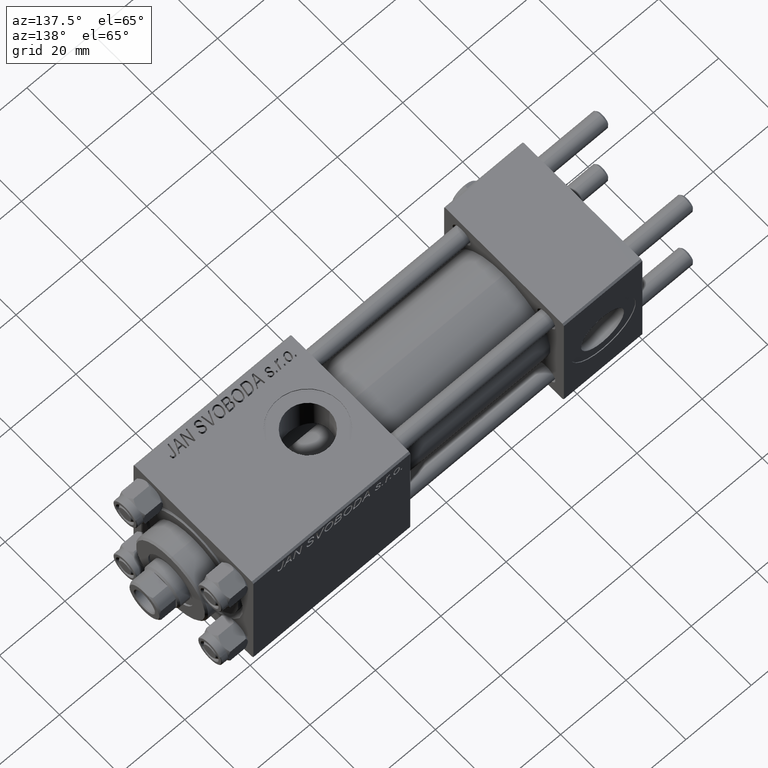
[diagram: clean part render]
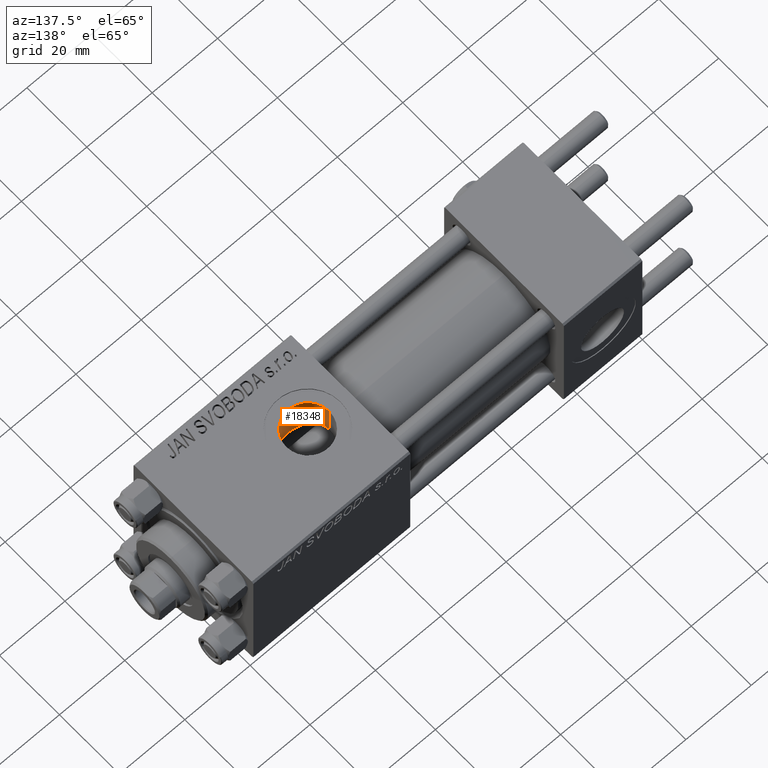
[diagram: same view with one face highlighted and labeled with its STEP entity id]
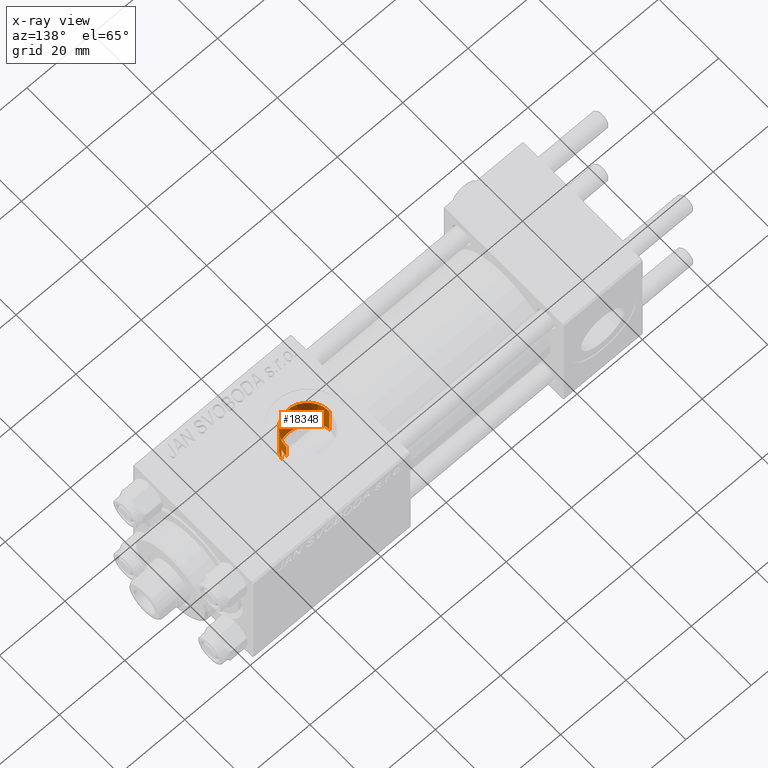
[diagram: x-ray of the same camera — body ghosted, the highlighted face saturated]
A machine part, auxiliary view. The second image highlights one B-rep face of the part: STEP entity #18348.
The next image is the same camera in x-ray: the body ghosted, the highlighted face saturated — about 0% of this face is hidden behind the body in this view.
In plain terms, the highlighted cylindrical surface (edge-blend (fillet) strip) has radius 6.58 mm, axis along (0, 0, -1).
Its self-contained STEP definition (entity closure, byte-faithful):
#1369 = VERTEX_POINT ( 'NONE', #28044 ) ;
#2113 = AXIS2_PLACEMENT_3D ( 'NONE', #41270, #25388, #18320 ) ;
#2709 = CARTESIAN_POINT ( 'NONE',  ( 90.30000000000001137, -1.899052395280425687, 9.818024241158688881 ) ) ;
#2806 = CARTESIAN_POINT ( 'NONE',  ( 78.91948560029773319, -4.185857250485334191, 9.083179932575475846 ) ) ;
#2949 = B_SPLINE_CURVE_WITH_KNOTS ( 'NONE', 3,
 ( #7222, #30650, #46533, #6714, #38720, #22577, #26496, #34806, #10879, #11398, #3068, #51465, #15275, #51198, #46780, #34548, #38458, #31155, #11131, #22833, #26996, #26739, #35057, #11658, #19432, #42606, #18924, #23342, #31419, #42873, #39227, #35332, #47040, #2806, #47299, #14778, #23087, #50931, #18669, #27248, #43132, #27515, #7485, #3575, #43387, #7741 ),
 .UNSPECIFIED., .F., .F.,
 ( 4, 2, 2, 2, 2, 2, 2, 2, 2, 2, 2, 2, 2, 2, 2, 2, 2, 2, 2, 2, 2, 2, 4 ),
 ( 0.000000000000000000, 0.001207791230099128713, 0.002415582460198257425, 0.003623373690297387439, 0.004227269305346951361, 0.004831164920396514850, 0.006038956150495643563, 0.006642851765545208786, 0.007246747380594774877, 0.008454538610693906192, 0.009058434225743452334, 0.009662329840792995006, 0.01026622545584254462, 0.01087012107089208729, 0.01207791230099114141, 0.01328570353109019379, 0.01449349476118924791, 0.01509739037623876109, 0.01570128599128827601, 0.01690907722138732666, 0.01751297283643684158, 0.01811686845148635996, 0.01932465968158540368 ),
 .UNSPECIFIED. ) ;
#3068 = CARTESIAN_POINT ( 'NONE',  ( 87.74050804270909509, -5.416766998256425936, 8.406790300728637533 ) ) ;
#3193 = EDGE_CURVE ( 'NONE', #32519, #50520, #26997, .T. ) ;
#3575 = CARTESIAN_POINT ( 'NONE',  ( 77.45763783829809768, -0.8084208477569198026, 9.975121118623759386 ) ) ;
#4461 = DIRECTION ( 'NONE',  ( 1.000000000000000000, 0.000000000000000000, 0.000000000000000000 ) ) ;
#4695 = CARTESIAN_POINT ( 'NONE',  ( 90.58000000000163254, -0.3230844264541410382, 14.99999999999999822 ) ) ;
#6077 = LINE ( 'NONE', #21690, #44598 ) ;
#6714 = CARTESIAN_POINT ( 'NONE',  ( 89.68316260257668660, -3.338928794742783257, 9.433056230293225042 ) ) ;
#7222 = CARTESIAN_POINT ( 'NONE',  ( 90.30000000000001137, -1.899052395280425687, 9.818024241158688881 ) ) ;
#7418 = CARTESIAN_POINT ( 'NONE',  ( 90.58000000000161833, -9.289058821378484469E-16, 42.80000000000000426 ) ) ;
#7485 = CARTESIAN_POINT ( 'NONE',  ( 77.56705469300597144, -1.397686090542901827, 9.903818455115095176 ) ) ;
#7634 = ORIENTED_EDGE ( 'NONE', *, *, #40217, .T. ) ;
#7741 = CARTESIAN_POINT ( 'NONE',  ( 77.42000000000160753, 1.225496637846663454E-15, 9.999999999999998224 ) ) ;
#10879 = CARTESIAN_POINT ( 'NONE',  ( 88.19718467613812152, -5.071121963171669300, 8.619888602053986659 ) ) ;
#11131 = CARTESIAN_POINT ( 'NONE',  ( 84.65744280686449486, -6.559709605005282995, 7.547889352010204611 ) ) ;
#11398 = CARTESIAN_POINT ( 'NONE',  ( 87.89699318866331623, -5.305288046702228755, 8.477775428654668488 ) ) ;
#11658 = CARTESIAN_POINT ( 'NONE',  ( 82.83871781191193406, -6.479820246554030660, 7.616654439234428864 ) ) ;
#11852 = VERTEX_POINT ( 'NONE', #20791 ) ;
#12639 = ORIENTED_EDGE ( 'NONE', *, *, #32771, .T. ) ;
#12683 = CARTESIAN_POINT ( 'NONE',  ( 90.58000000000161833, 1.836897620916020515E-15, 15.00000000000000000 ) ) ;
#13283 = CARTESIAN_POINT ( 'NONE',  ( 90.46247493449398291, -1.278752734038853367, 14.94875937294843737 ) ) ;
#14778 = CARTESIAN_POINT ( 'NONE',  ( 78.57242859662571277, -3.724876030302983754, 9.281895439158471817 ) ) ;
#15275 = CARTESIAN_POINT ( 'NONE',  ( 86.92434068310747364, -5.907044672533368512, 8.071096920455888224 ) ) ;
#15569 = ORIENTED_EDGE ( 'NONE', *, *, #45503, .F. ) ;
#16894 = CARTESIAN_POINT ( 'NONE',  ( 90.39284622331672381, -1.591040247564629917, 14.91861279833453757 ) ) ;
#18320 = DIRECTION ( 'NONE',  ( -1.000000000000000000, 0.000000000000000000, 0.000000000000000000 ) ) ;
#18348 = ADVANCED_FACE ( 'NONE', ( #41001 ), #29025, .F. ) ;
#18669 = CARTESIAN_POINT ( 'NONE',  ( 77.99714712711337938, -2.723766581248835195, 9.629423614267464515 ) ) ;
#18924 = CARTESIAN_POINT ( 'NONE',  ( 82.06128195140055936, -6.290973204689824350, 7.773687993805351581 ) ) ;
#19432 = CARTESIAN_POINT ( 'NONE',  ( 82.64228046384918969, -6.441510615515350757, 7.649229527462736655 ) ) ;
#19535 = VECTOR ( 'NONE', #22236, 1000.000000000000000 ) ;
#20791 = CARTESIAN_POINT ( 'NONE',  ( 90.30000000000001137, -1.899052395280425687, 14.87930105885285492 ) ) ;
#20841 = CARTESIAN_POINT ( 'NONE',  ( 84.00000000000162004, -1.734723475976807094E-15, 19.80000000000000071 ) ) ;
#21690 = CARTESIAN_POINT ( 'NONE',  ( 77.42000000000160753, -1.734723475976807094E-15, 42.80000000000000426 ) ) ;
#22236 = DIRECTION ( 'NONE',  ( -0.000000000000000000, -0.000000000000000000, 1.000000000000000000 ) ) ;
#22577 = CARTESIAN_POINT ( 'NONE',  ( 89.01171256368664331, -4.281038711600606561, 9.043476487246884687 ) ) ;
#22833 = CARTESIAN_POINT ( 'NONE',  ( 84.04743762832168841, -6.582974628387458615, 7.527585999844431441 ) ) ;
#23087 = CARTESIAN_POINT ( 'NONE',  ( 78.46622740148487196, -3.565203004853826130, 9.344512687240944970 ) ) ;
#23342 = CARTESIAN_POINT ( 'NONE',  ( 81.50365122395012918, -6.100731835173064610, 7.925108619062641857 ) ) ;
#25388 = DIRECTION ( 'NONE',  ( 0.000000000000000000, 0.000000000000000000, -1.000000000000000000 ) ) ;
#25890 = CARTESIAN_POINT ( 'NONE',  ( 90.30000000000001137, -1.899052395280425687, 42.80000000000000426 ) ) ;
#26496 = CARTESIAN_POINT ( 'NONE',  ( 88.75695250607569164, -4.561896889324070337, 8.903678834414037624 ) ) ;
#26739 = CARTESIAN_POINT ( 'NONE',  ( 83.43610688731122593, -6.558932760432698572, 7.548550817889249309 ) ) ;
#26996 = CARTESIAN_POINT ( 'NONE',  ( 83.84132420776347772, -6.581215419006931633, 7.529131557806598707 ) ) ;
#26997 = CIRCLE ( 'NONE', #41149, 6.580000000000002736 ) ;
#27248 = CARTESIAN_POINT ( 'NONE',  ( 77.78468472323123706, -2.169203254886967080, 9.763745855050853351 ) ) ;
#27277 = EDGE_CURVE ( 'NONE', #34285, #1369, #2949, .T. ) ;
#27515 = CARTESIAN_POINT ( 'NONE',  ( 77.61241581302006409, -1.592248641449315327, 9.874366003595852703 ) ) ;
#28044 = CARTESIAN_POINT ( 'NONE',  ( 77.42000000000160753, 1.225496637846663454E-15, 9.999999999999998224 ) ) ;
#29025 = CYLINDRICAL_SURFACE ( 'NONE', #2113, 6.580000000000002736 ) ;
#29466 = ORIENTED_EDGE ( 'NONE', *, *, #48746, .F. ) ;
#30650 = CARTESIAN_POINT ( 'NONE',  ( 90.18384735178126732, -2.284382302762852035, 9.743491762341815132 ) ) ;
#31155 = CARTESIAN_POINT ( 'NONE',  ( 85.05563542025795698, -6.507095227757741185, 7.594134426898156320 ) ) ;
#31419 = CARTESIAN_POINT ( 'NONE',  ( 81.15150766959233408, -5.943877247081645443, 8.044991576419555201 ) ) ;
#31676 = CARTESIAN_POINT ( 'NONE',  ( 77.42000000000160753, -1.734723475976807094E-15, 19.80000000000000071 ) ) ;
#32518 = CARTESIAN_POINT ( 'NONE',  ( 90.58000000000161833, 1.836897620916020515E-15, 15.00000000000000000 ) ) ;
#32519 = VERTEX_POINT ( 'NONE', #43697 ) ;
#32771 = EDGE_CURVE ( 'NONE', #50617, #11852, #33021, .T. ) ;
#33021 = B_SPLINE_CURVE_WITH_KNOTS ( 'NONE', 3,
 ( #32518, #4695, #48403, #13283, #16894, #40085 ),
 .UNSPECIFIED., .F., .F.,
 ( 4, 2, 4 ),
 ( 0.001923267627926032990, 0.002881828648815681643, 0.003840389669705330297 ),
 .UNSPECIFIED. ) ;
#34285 = VERTEX_POINT ( 'NONE', #2709 ) ;
#34548 = CARTESIAN_POINT ( 'NONE',  ( 85.83530013697964023, -6.321933289866703554, 7.748495657719945306 ) ) ;
#34806 = CARTESIAN_POINT ( 'NONE',  ( 88.34134544482084550, -4.948221379669130116, 8.691185487698993128 ) ) ;
#35057 = CARTESIAN_POINT ( 'NONE',  ( 83.23563096081971935, -6.538530929801131819, 7.566314066597755073 ) ) ;
#35332 = CARTESIAN_POINT ( 'NONE',  ( 79.57031396582824812, -4.880372653832610652, 8.732632965335264785 ) ) ;
#38458 = CARTESIAN_POINT ( 'NONE',  ( 85.64143006621931420, -6.375121249718984195, 7.704616833471232162 ) ) ;
#38720 = CARTESIAN_POINT ( 'NONE',  ( 89.47667727346400568, -3.667500690328759916, 9.309199649381696418 ) ) ;
#39227 = CARTESIAN_POINT ( 'NONE',  ( 80.16020215073284305, -5.356874842515797042, 8.448716332624659486 ) ) ;
#40085 = CARTESIAN_POINT ( 'NONE',  ( 90.30000000000001137, -1.899052395280425687, 14.87930105885285492 ) ) ;
#40217 = EDGE_CURVE ( 'NONE', #32519, #50617, #46471, .T. ) ;
#40379 = DIRECTION ( 'NONE',  ( -0.000000000000000000, -0.000000000000000000, -1.000000000000000000 ) ) ;
#41001 = FACE_OUTER_BOUND ( 'NONE', #45803, .T. ) ;
#41149 = AXIS2_PLACEMENT_3D ( 'NONE', #20841, #40379, #4461 ) ;
#41270 = CARTESIAN_POINT ( 'NONE',  ( 84.00000000000162004, -1.734723475976807094E-15, 42.80000000000000426 ) ) ;
#41517 = ORIENTED_EDGE ( 'NONE', *, *, #3193, .F. ) ;
#42019 = LINE ( 'NONE', #25890, #19535 ) ;
#42606 = CARTESIAN_POINT ( 'NONE',  ( 82.25327158685243489, -6.347078162378677391, 7.727766182685684271 ) ) ;
#42873 = CARTESIAN_POINT ( 'NONE',  ( 80.48004077057800032, -5.572564248886740401, 8.306509127489464461 ) ) ;
#42952 = ORIENTED_EDGE ( 'NONE', *, *, #27277, .T. ) ;
#43132 = CARTESIAN_POINT ( 'NONE',  ( 77.72104259078351163, -1.977670684213895580, 9.804446867313206582 ) ) ;
#43387 = CARTESIAN_POINT ( 'NONE',  ( 77.42000000000160753, -0.4081853129698259086, 10.00000000000000533 ) ) ;
#43697 = CARTESIAN_POINT ( 'NONE',  ( 90.58000000000161833, -9.289058821378484469E-16, 19.80000000000000071 ) ) ;
#44598 = VECTOR ( 'NONE', #49537, 1000.000000000000000 ) ;
#45503 = EDGE_CURVE ( 'NONE', #34285, #11852, #42019, .T. ) ;
#45803 = EDGE_LOOP ( 'NONE', ( #41517, #7634, #12639, #15569, #42952, #29466 ) ) ;
#46471 = LINE ( 'NONE', #7418, #48607 ) ;
#46533 = CARTESIAN_POINT ( 'NONE',  ( 90.03601729897114581, -2.648259396322670600, 9.649752199410361442 ) ) ;
#46715 = DIRECTION ( 'NONE',  ( 0.000000000000000000, 0.000000000000000000, -1.000000000000000000 ) ) ;
#46780 = CARTESIAN_POINT ( 'NONE',  ( 86.21002104074325700, -6.200884946021455235, 7.845702732415631431 ) ) ;
#47040 = CARTESIAN_POINT ( 'NONE',  ( 79.29730408322581070, -4.618177244595062625, 8.875509752878100400 ) ) ;
#47299 = CARTESIAN_POINT ( 'NONE',  ( 78.79875737437940586, -4.034886358905333203, 9.151392050137300060 ) ) ;
#48403 = CARTESIAN_POINT ( 'NONE',  ( 90.55605924908766724, -0.6456608678150312919, 14.98945420583744870 ) ) ;
#48607 = VECTOR ( 'NONE', #46715, 1000.000000000000000 ) ;
#48746 = EDGE_CURVE ( 'NONE', #50520, #1369, #6077, .T. ) ;
#49537 = DIRECTION ( 'NONE',  ( 0.000000000000000000, 0.000000000000000000, -1.000000000000000000 ) ) ;
#50520 = VERTEX_POINT ( 'NONE', #31676 ) ;
#50617 = VERTEX_POINT ( 'NONE', #12683 ) ;
#50931 = CARTESIAN_POINT ( 'NONE',  ( 78.16834223545392035, -3.071777053896299847, 9.522948337697696886 ) ) ;
#51198 = CARTESIAN_POINT ( 'NONE',  ( 86.39211994537815542, -6.132805105779490340, 7.899218132207726839 ) ) ;
#51465 = CARTESIAN_POINT ( 'NONE',  ( 87.26053252520641479, -5.728070196490103072, 8.200680661956178952 ) ) ;